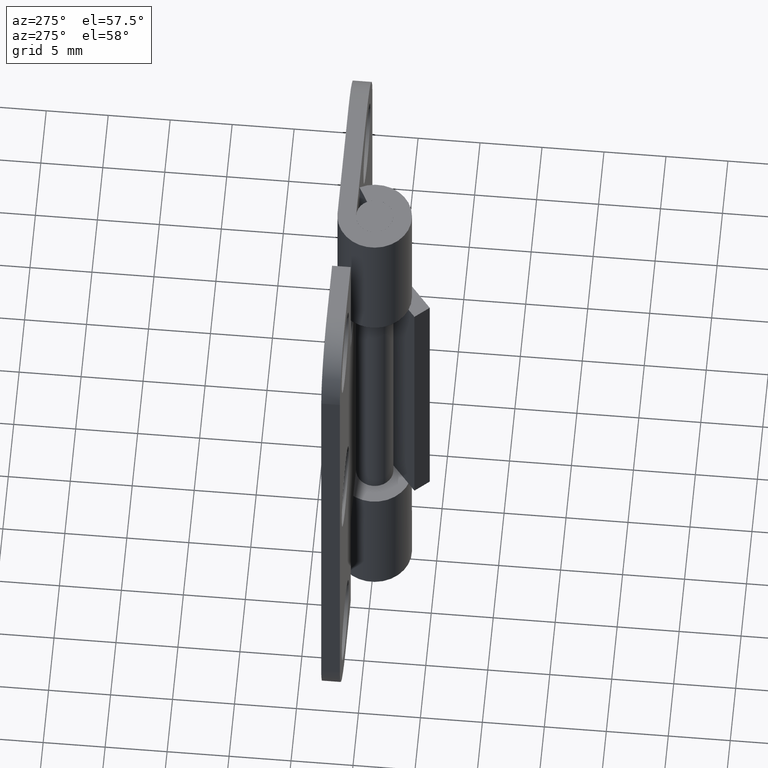
[diagram: clean part render]
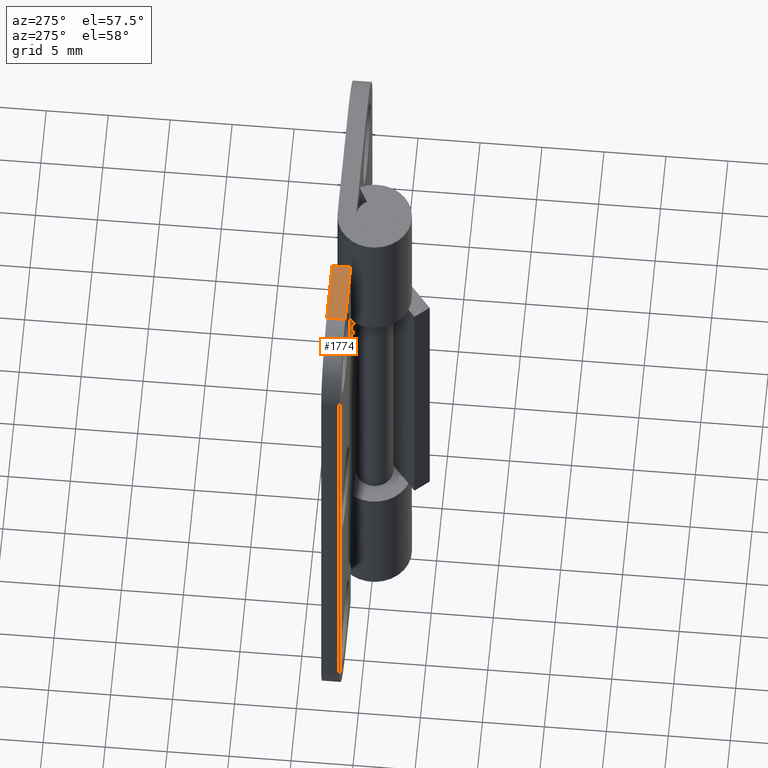
[diagram: same view with one face highlighted and labeled with its STEP entity id]
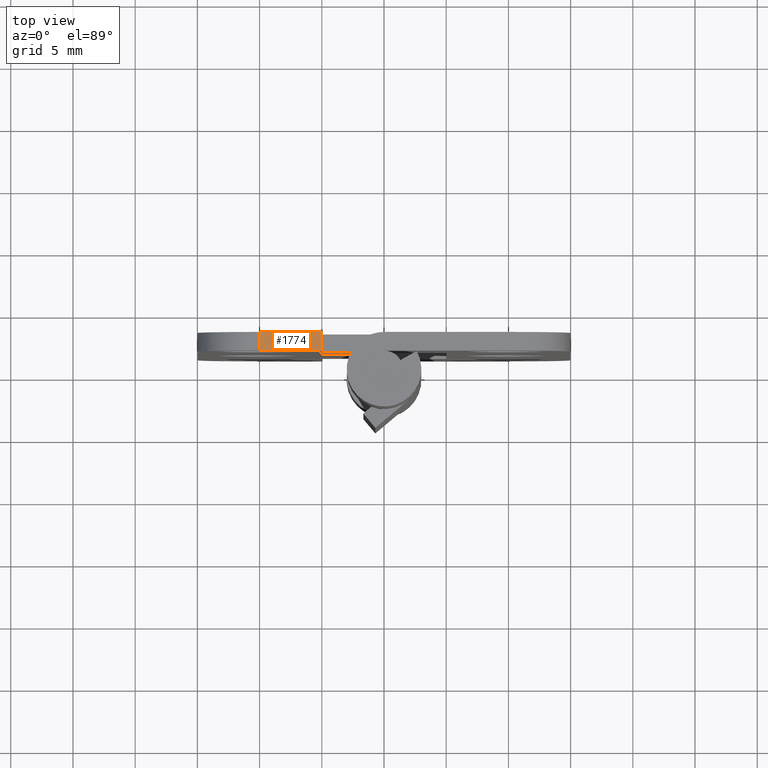
[diagram: same view with one face highlighted and labeled with its STEP entity id]
A machine part, auxiliary view. The second image highlights one B-rep face of the part: STEP entity #1774.
A second angle (top view) of the same face is appended — the face is thin or edge-on in the first view.
In plain terms, the highlighted face is a freeform B-spline surface patch.
Its self-contained STEP definition (entity closure, byte-faithful):
#1293=CARTESIAN_POINT('',(-10.0,1.499999999999946,50.0));
#1294=VERTEX_POINT('',#1293);
#1310=CARTESIAN_POINT('',(-10.0,3.0,50.0));
#1311=VERTEX_POINT('',#1310);
#1312=CARTESIAN_POINT('',(-10.0,3.0,50.0));
#1313=CARTESIAN_POINT('',(-10.0,1.499999999999946,50.0));
#1314=QUASI_UNIFORM_CURVE('',1,(#1312,#1313),.UNSPECIFIED.,.F.,.U.);
#1315=EDGE_CURVE('',#1311,#1294,#1314,.T.);
#1684=CARTESIAN_POINT('',(-5.0,1.499999999999946,50.0));
#1685=VERTEX_POINT('',#1684);
#1692=CARTESIAN_POINT('',(-5.0,3.0,50.0));
#1693=VERTEX_POINT('',#1692);
#1699=CARTESIAN_POINT('',(-5.0,1.499999999999946,50.0));
#1700=CARTESIAN_POINT('',(-5.0,3.0,50.0));
#1701=QUASI_UNIFORM_CURVE('',1,(#1699,#1700),.UNSPECIFIED.,.F.,.U.);
#1702=EDGE_CURVE('',#1685,#1693,#1701,.T.);
#1755=CARTESIAN_POINT('',(-4.750250009690970,1.425075002907234,50.0));
#1756=CARTESIAN_POINT('',(-10.249750124419480,1.425075002907234,50.0));
#1757=CARTESIAN_POINT('',(-4.750250009690970,3.074925037325847,50.0));
#1758=CARTESIAN_POINT('',(-10.249750124419480,3.074925037325847,50.0));
#1759=B_SPLINE_SURFACE_WITH_KNOTS('',1,1,((#1755,#1757),(#1756,#1758)),.UNSPECIFIED.,.F.,.F.,.U.,(2,2),(2,2),(0.0,5.499500114728511),(0.041708334948495,0.958291687403247),.UNSPECIFIED.);
#1760=CARTESIAN_POINT('',(-5.0,3.0,50.0));
#1761=CARTESIAN_POINT('',(-10.0,3.0,50.0));
#1762=QUASI_UNIFORM_CURVE('',1,(#1760,#1761),.UNSPECIFIED.,.F.,.U.);
#1763=EDGE_CURVE('',#1693,#1311,#1762,.T.);
#1764=ORIENTED_EDGE('',*,*,#1763,.T.);
#1765=ORIENTED_EDGE('',*,*,#1315,.T.);
#1766=CARTESIAN_POINT('',(-5.0,1.499999999999946,50.0));
#1767=CARTESIAN_POINT('',(-10.0,1.499999999999946,50.0));
#1768=QUASI_UNIFORM_CURVE('',1,(#1766,#1767),.UNSPECIFIED.,.F.,.U.);
#1769=EDGE_CURVE('',#1685,#1294,#1768,.T.);
#1770=ORIENTED_EDGE('',*,*,#1769,.F.);
#1771=ORIENTED_EDGE('',*,*,#1702,.T.);
#1772=EDGE_LOOP('',(#1764,#1765,#1770,#1771));
#1773=FACE_OUTER_BOUND('',#1772,.T.);
#1774=ADVANCED_FACE('',(#1773),#1759,.F.);